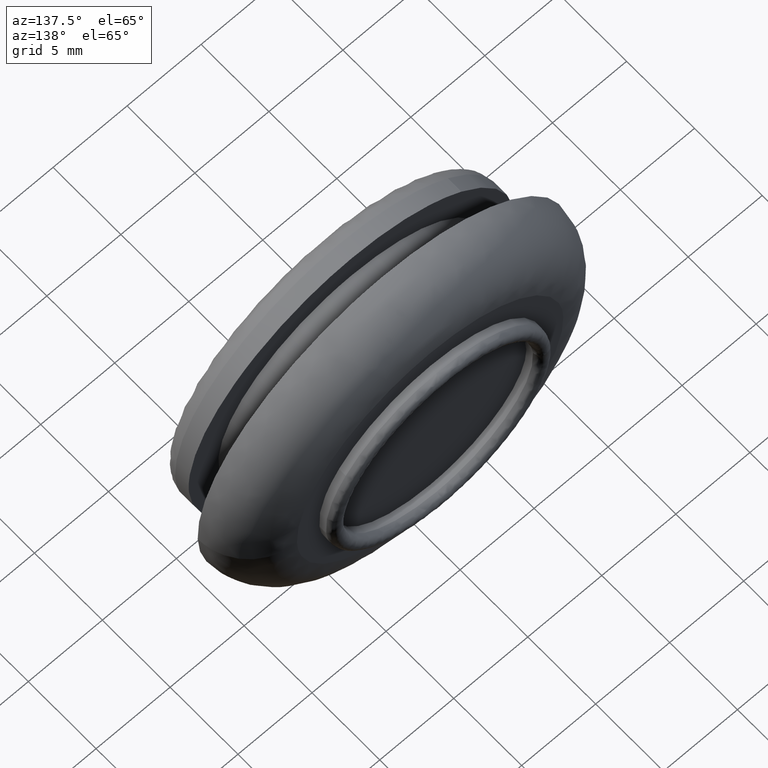
[diagram: clean part render]
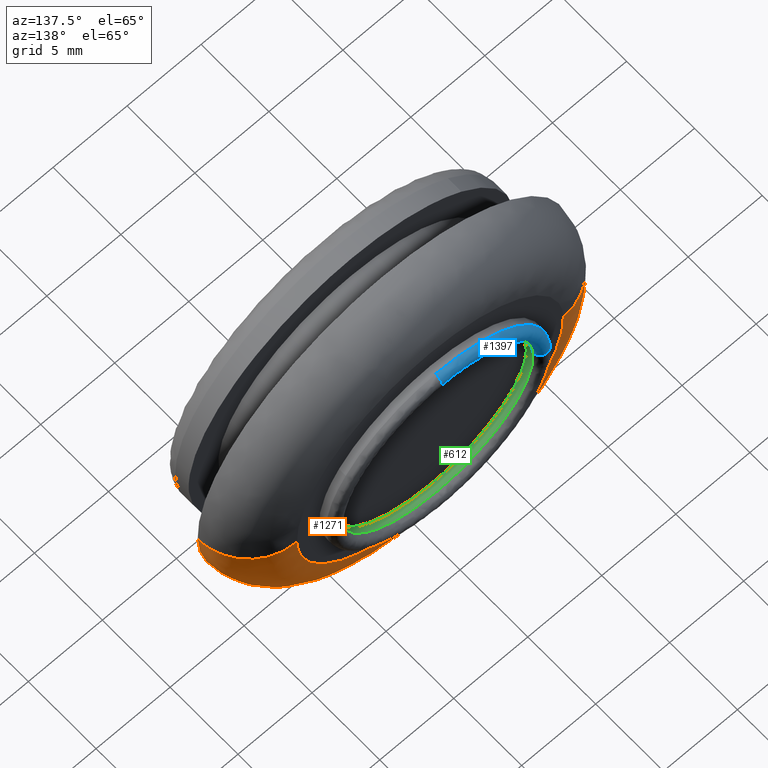
[diagram: same view with three faces highlighted in distinct colors, each labeled with its STEP entity id]
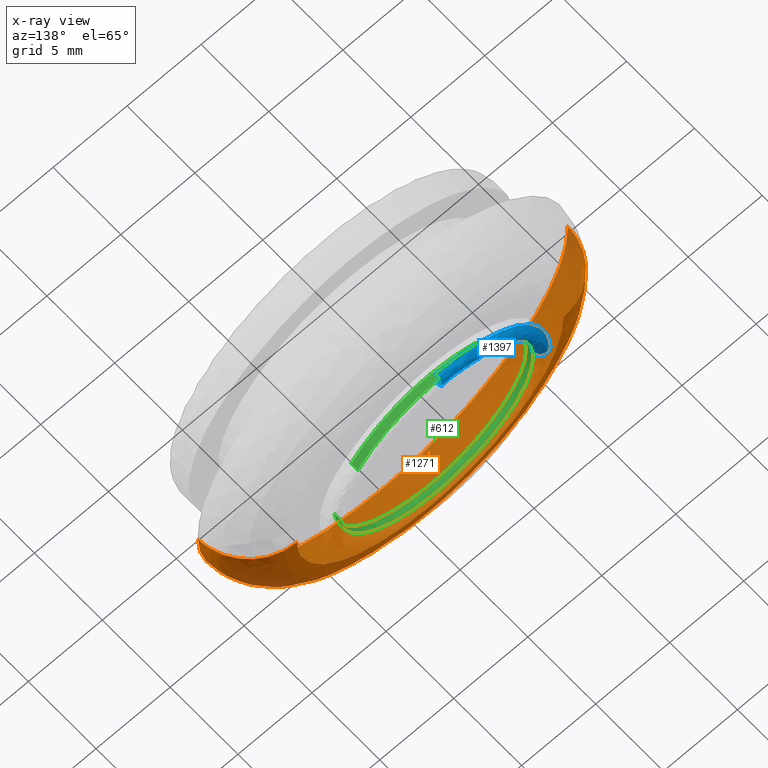
[diagram: x-ray of the same camera — body ghosted, the three highlighted faces saturated]
A machine part, auxiliary view with three faces highlighted in distinct colors.
The next image is the same camera in x-ray (body ghosted, the three faces saturated) — at least one of them is partly hidden behind the body in this view.
Their STEP definitions:

[orange] entity #1271 — the highlighted face is a freeform B-spline surface patch.
#1087=CARTESIAN_POINT('',(12.496050525280710,4.299995524025132,-0.314117832950500));
#1088=VERTEX_POINT('',#1087);
#1106=CARTESIAN_POINT('',(8.997155704191735,7.799999999999999,-0.226168808732028));
#1107=VERTEX_POINT('',#1106);
#1108=CARTESIAN_POINT('',(8.997155704191735,7.799999999999999,-0.226168808732028));
#1109=CARTESIAN_POINT('',(12.496054920537128,7.799999999979065,-0.314121100348626));
#1110=CARTESIAN_POINT('',(12.496050525280706,4.299995524025132,-0.314117832950500));
#1118=(BOUNDED_CURVE()B_SPLINE_CURVE(2,(#1108,#1109,#1110),.UNSPECIFIED.,.F.,.U.)B_SPLINE_CURVE_WITH_KNOTS((3,3),(-1.723441281978611,-0.263585555365044),.UNSPECIFIED.)CURVE()GEOMETRIC_REPRESENTATION_ITEM()RATIONAL_B_SPLINE_CURVE((0.883897567136494,0.626638493997421,0.888510883909800))REPRESENTATION_ITEM(''));
#1119=EDGE_CURVE('',#1107,#1088,#1118,.T.);
#1138=CARTESIAN_POINT('',(-8.997155704191737,7.799999999999999,0.226172808732031));
#1139=VERTEX_POINT('',#1138);
#1153=CARTESIAN_POINT('',(-12.496050525280710,4.299995524025133,0.314121832950505));
#1154=VERTEX_POINT('',#1153);
#1155=CARTESIAN_POINT('',(-8.997155704191737,7.799999999999999,0.226172808732031));
#1156=CARTESIAN_POINT('',(-12.496054920537130,7.799999999979062,0.314125100348629));
#1157=CARTESIAN_POINT('',(-12.496050525280706,4.299995524025133,0.314121832950505));
#1165=(BOUNDED_CURVE()B_SPLINE_CURVE(2,(#1155,#1156,#1157),.UNSPECIFIED.,.F.,.U.)B_SPLINE_CURVE_WITH_KNOTS((3,3),(-1.723441281978611,-0.263585555365044),.UNSPECIFIED.)CURVE()GEOMETRIC_REPRESENTATION_ITEM()RATIONAL_B_SPLINE_CURVE((0.883897567136494,0.626638493997421,0.888510883909800))REPRESENTATION_ITEM(''));
#1166=EDGE_CURVE('',#1139,#1154,#1165,.T.);
#1184=CARTESIAN_POINT('',(-8.753197906667907,7.791482061247154,0.220040189247239));
#1185=CARTESIAN_POINT('',(-8.973236095915143,7.791482061247154,-8.533157717420670));
#1186=CARTESIAN_POINT('',(-0.220038189247237,7.791482061247154,-8.753195906667905));
#1187=CARTESIAN_POINT('',(8.533159717420670,7.791482061247154,-8.973234095915142));
#1188=CARTESIAN_POINT('',(8.753197906667907,7.791482061247154,-0.220036189247235));
#1189=CARTESIAN_POINT('',(-12.766645136092702,8.072087961660770,0.320930363377683));
#1190=CARTESIAN_POINT('',(-13.087573499470386,8.072087961660774,-12.445714772715020));
#1191=CARTESIAN_POINT('',(-0.320928363377682,8.072087961660770,-12.766643136092700));
#1192=CARTESIAN_POINT('',(12.445716772715022,8.072087961660774,-13.087571499470384));
#1193=CARTESIAN_POINT('',(12.766645136092702,8.072087961660770,-0.320926363377680));
#1194=CARTESIAN_POINT('',(-12.487625934623955,4.057268382768482,0.313916369119696));
#1195=CARTESIAN_POINT('',(-12.801540303743652,4.057268382768482,-12.173709565504259));
#1196=CARTESIAN_POINT('',(-0.313914369119695,4.057268382768482,-12.487623934623958));
#1197=CARTESIAN_POINT('',(12.173711565504263,4.057268382768482,-12.801538303743650));
#1198=CARTESIAN_POINT('',(12.487625934623955,4.057268382768482,-0.313912369119693));
#1206=(BOUNDED_SURFACE()B_SPLINE_SURFACE(2,2,((#1184,#1189,#1194),(#1185,#1190,#1195),(#1186,#1191,#1196),(#1187,#1192,#1197),(#1188,#1193,#1198)),.UNSPECIFIED.,.F.,.F.,.U.)B_SPLINE_SURFACE_WITH_KNOTS((3,2,3),(3,3),(0.0,20.696712339410212,41.393424678820409),(0.0,6.378301979770220),.UNSPECIFIED.)GEOMETRIC_REPRESENTATION_ITEM()RATIONAL_B_SPLINE_SURFACE(((0.910892967376164,0.599412647750772,0.915967176520522),(0.644098594166822,0.423848747953554,0.647686601861957),(0.910892967376164,0.599412647750772,0.915967176520522),(0.644098594166822,0.423848747953554,0.647686601861957),(0.910892967376164,0.599412647750772,0.915967176520522)))REPRESENTATION_ITEM('')SURFACE());
#1207=CARTESIAN_POINT('',(0.0,4.300000000000000,-12.499995999999999));
#1208=VERTEX_POINT('',#1207);
#1209=CARTESIAN_POINT('',(0.0,4.300000000000000,-12.499995999999999));
#1210=CARTESIAN_POINT('',(12.189727658995960,4.299997762012565,-12.499995999999904));
#1211=CARTESIAN_POINT('',(12.496050525280708,4.299995524025132,-0.314117832950500));
#1219=(BOUNDED_CURVE()B_SPLINE_CURVE(2,(#1209,#1210,#1211),.UNSPECIFIED.,.F.,.U.)B_SPLINE_CURVE_WITH_KNOTS((3,3),(0.0,0.245579980124359),.UNSPECIFIED.)CURVE()GEOMETRIC_REPRESENTATION_ITEM()RATIONAL_B_SPLINE_CURVE((1.0,0.712285156580931,0.989826357388567))REPRESENTATION_ITEM(''));
#1220=EDGE_CURVE('',#1208,#1088,#1219,.T.);
#1221=ORIENTED_EDGE('',*,*,#1220,.F.);
#1222=CARTESIAN_POINT('',(-12.496050525280710,4.299995524025133,0.314121832950505));
#1223=CARTESIAN_POINT('',(-12.499997999992726,4.299995551451335,0.157086719997523));
#1224=CARTESIAN_POINT('',(-12.499997999992770,4.299995579575630,0.000001999999817));
#1225=CARTESIAN_POINT('',(-12.499997999996433,4.299997817563065,-12.499996000000088));
#1226=CARTESIAN_POINT('',(0.0,4.300000000000000,-12.499995999999999));
#1234=(BOUNDED_CURVE()B_SPLINE_CURVE(2,(#1222,#1223,#1224,#1225,#1226),.UNSPECIFIED.,.F.,.U.)B_SPLINE_CURVE_WITH_KNOTS((3,2,3),(0.745579980124359,0.750000000000000,1.0),.UNSPECIFIED.)CURVE()GEOMETRIC_REPRESENTATION_ITEM()RATIONAL_B_SPLINE_CURVE((0.989826357388567,0.994821624605617,1.0,0.707106781186548,1.0))REPRESENTATION_ITEM(''));
#1235=EDGE_CURVE('',#1154,#1208,#1234,.T.);
#1236=ORIENTED_EDGE('',*,*,#1235,.F.);
#1237=ORIENTED_EDGE('',*,*,#1166,.F.);
#1238=CARTESIAN_POINT('',(0.0,7.800000000000000,-8.999995999999998));
#1239=VERTEX_POINT('',#1238);
#1240=CARTESIAN_POINT('',(-8.997155704191737,7.799999999999999,0.226172808732031));
#1241=CARTESIAN_POINT('',(-8.999998000000002,7.800000000000001,0.113105263978272));
#1242=CARTESIAN_POINT('',(-8.999998000000000,7.800000000000000,0.000002000000002));
#1243=CARTESIAN_POINT('',(-8.999998000000000,7.800000000000001,-8.999995999999998));
#1244=CARTESIAN_POINT('',(0.0,7.800000000000000,-8.999995999999998));
#1252=(BOUNDED_CURVE()B_SPLINE_CURVE(2,(#1240,#1241,#1242,#1243,#1244),.UNSPECIFIED.,.F.,.U.)B_SPLINE_CURVE_WITH_KNOTS((3,2,3),(0.745579891769733,0.750000000000000,1.0),.UNSPECIFIED.)CURVE()GEOMETRIC_REPRESENTATION_ITEM()RATIONAL_B_SPLINE_CURVE((0.989826157681407,0.994821521091733,1.0,0.707106781186548,1.0))REPRESENTATION_ITEM(''));
#1253=EDGE_CURVE('',#1139,#1239,#1252,.T.);
#1254=ORIENTED_EDGE('',*,*,#1253,.T.);
#1255=CARTESIAN_POINT('',(0.0,7.800000000000000,-8.999995999999998));
#1256=CARTESIAN_POINT('',(8.776598935266343,7.799999999999999,-8.999995999999999));
#1257=CARTESIAN_POINT('',(8.997155704191735,7.799999999999999,-0.226168808732028));
#1265=(BOUNDED_CURVE()B_SPLINE_CURVE(2,(#1255,#1256,#1257),.UNSPECIFIED.,.F.,.U.)B_SPLINE_CURVE_WITH_KNOTS((3,3),(0.0,0.245579891769733),.UNSPECIFIED.)CURVE()GEOMETRIC_REPRESENTATION_ITEM()RATIONAL_B_SPLINE_CURVE((1.0,0.712285260094815,0.989826157681407))REPRESENTATION_ITEM(''));
#1266=EDGE_CURVE('',#1239,#1107,#1265,.T.);
#1267=ORIENTED_EDGE('',*,*,#1266,.T.);
#1268=ORIENTED_EDGE('',*,*,#1119,.T.);
#1269=EDGE_LOOP('',(#1221,#1236,#1237,#1254,#1267,#1268));
#1270=FACE_OUTER_BOUND('',#1269,.T.);
#1271=ADVANCED_FACE('',(#1270),#1206,.T.);

[blue] entity #1397 — the highlighted face is a freeform B-spline surface patch.
#258=CARTESIAN_POINT('',(0.094245273996667,8.300000000076508,7.499407831686487));
#259=VERTEX_POINT('',#258);
#273=CARTESIAN_POINT('',(0.0,8.300000000000001,7.500000000000002));
#274=VERTEX_POINT('',#273);
#275=CARTESIAN_POINT('',(0.094245273996667,8.300000000076508,7.499407831686487));
#276=CARTESIAN_POINT('',(0.047124497376239,8.300000000000001,7.500000000000001));
#277=CARTESIAN_POINT('',(0.0,8.300000000000001,7.500000000000002));
#285=(BOUNDED_CURVE()B_SPLINE_CURVE(2,(#275,#276,#277),.UNSPECIFIED.,.F.,.U.)B_SPLINE_CURVE_WITH_KNOTS((3,3),(0.497784295921559,0.500000000000000),.UNSPECIFIED.)CURVE()GEOMETRIC_REPRESENTATION_ITEM()RATIONAL_B_SPLINE_CURVE((0.994854295643623,0.997404141202110,1.0))REPRESENTATION_ITEM(''));
#286=EDGE_CURVE('',#259,#274,#285,.T.);
#288=CARTESIAN_POINT('',(-7.481740558671582,8.300000000077104,0.523001247353787));
#289=VERTEX_POINT('',#288);
#290=CARTESIAN_POINT('',(0.0,8.300000000000001,7.500000000000002));
#291=CARTESIAN_POINT('',(-6.994024489417595,8.299999999999999,7.500000000000001));
#292=CARTESIAN_POINT('',(-7.481740558671582,8.300000000077104,0.523001247353787));
#300=(BOUNDED_CURVE()B_SPLINE_CURVE(2,(#290,#291,#292),.UNSPECIFIED.,.F.,.U.)B_SPLINE_CURVE_WITH_KNOTS((3,3),(0.500000000000000,0.737833686534930),.UNSPECIFIED.)CURVE()GEOMETRIC_REPRESENTATION_ITEM()RATIONAL_B_SPLINE_CURVE((1.0,0.721360504034059,0.972879876386633))REPRESENTATION_ITEM(''));
#301=EDGE_CURVE('',#274,#289,#300,.T.);
#474=CARTESIAN_POINT('',(0.081679234118887,8.300000000019672,6.499486787482601));
#475=VERTEX_POINT('',#474);
#565=CARTESIAN_POINT('',(-6.484174884830624,8.300000000018855,0.453267995785873));
#566=VERTEX_POINT('',#565);
#582=CARTESIAN_POINT('',(0.0,8.300000000000001,6.500000000000002));
#583=VERTEX_POINT('',#582);
#584=CARTESIAN_POINT('',(0.0,8.300000000000001,6.500000000000002));
#585=CARTESIAN_POINT('',(-6.061487642136870,8.300000000000001,6.500000000000004));
#586=CARTESIAN_POINT('',(-6.484174884830624,8.300000000018855,0.453267995785873));
#594=(BOUNDED_CURVE()B_SPLINE_CURVE(2,(#584,#585,#586),.UNSPECIFIED.,.F.,.U.)B_SPLINE_CURVE_WITH_KNOTS((3,3),(0.500000000000000,0.737833686534499),.UNSPECIFIED.)CURVE()GEOMETRIC_REPRESENTATION_ITEM()RATIONAL_B_SPLINE_CURVE((1.0,0.721360504034564,0.972879876385722))REPRESENTATION_ITEM(''));
#595=EDGE_CURVE('',#583,#566,#594,.T.);
#597=CARTESIAN_POINT('',(0.081679234118887,8.300000000019672,6.499486787482601));
#598=CARTESIAN_POINT('',(0.040841229389923,8.300000000000001,6.500000000000002));
#599=CARTESIAN_POINT('',(0.0,8.300000000000001,6.500000000000002));
#607=(BOUNDED_CURVE()B_SPLINE_CURVE(2,(#597,#598,#599),.UNSPECIFIED.,.F.,.U.)B_SPLINE_CURVE_WITH_KNOTS((3,3),(0.497784295921232,0.500000000000000),.UNSPECIFIED.)CURVE()GEOMETRIC_REPRESENTATION_ITEM()RATIONAL_B_SPLINE_CURVE((0.994854295642870,0.997404141201726,1.0))REPRESENTATION_ITEM(''));
#608=EDGE_CURVE('',#475,#583,#607,.T.);
#1326=CARTESIAN_POINT('',(-6.484174884830624,8.300000000018855,0.453267995785873));
#1327=CARTESIAN_POINT('',(-6.484174884869079,8.800000000000001,0.453267995776503));
#1328=CARTESIAN_POINT('',(-6.982957721751678,8.800000000000001,0.488134621561594));
#1329=CARTESIAN_POINT('',(-7.481740558518061,8.800000000000001,0.523001247338561));
#1330=CARTESIAN_POINT('',(-7.481740558671582,8.300000000077104,0.523001247353787));
#1338=(BOUNDED_CURVE()B_SPLINE_CURVE(2,(#1326,#1327,#1328,#1329,#1330),.UNSPECIFIED.,.F.,.U.)B_SPLINE_CURVE_WITH_KNOTS((3,2,3),(-3.781082537316214,-2.0,-0.218917462966828),.UNSPECIFIED.)CURVE()GEOMETRIC_REPRESENTATION_ITEM()RATIONAL_B_SPLINE_CURVE((0.909467617922561,0.666712033872824,0.977505800795127,0.666712033922214,0.909467617845405))REPRESENTATION_ITEM(''));
#1339=EDGE_CURVE('',#566,#289,#1338,.T.);
#1345=CARTESIAN_POINT('',(0.081679234118887,8.300000000019672,6.499486787482601));
#1346=CARTESIAN_POINT('',(0.081679234110207,8.800000000000001,6.499486787522057));
#1347=CARTESIAN_POINT('',(0.087962254051389,8.800000000000001,6.999447309584624));
#1348=CARTESIAN_POINT('',(0.094245273991143,8.800000000000003,7.499407831533529));
#1349=CARTESIAN_POINT('',(0.094245273996667,8.300000000076508,7.499407831686487));
#1357=(BOUNDED_CURVE()B_SPLINE_CURVE(2,(#1345,#1346,#1347,#1348,#1349),.UNSPECIFIED.,.F.,.U.)B_SPLINE_CURVE_WITH_KNOTS((3,2,3),(-3.781082537312238,-2.0,-0.218917462963931),.UNSPECIFIED.)CURVE()GEOMETRIC_REPRESENTATION_ITEM()RATIONAL_B_SPLINE_CURVE((0.930396133896795,0.682054299147073,1.0,0.682054299196372,0.930396133819781))REPRESENTATION_ITEM(''));
#1358=EDGE_CURVE('',#475,#259,#1357,.T.);
#1366=CARTESIAN_POINT('',(0.081742850269833,8.229028759095721,6.504548934176996));
#1367=CARTESIAN_POINT('',(-6.060848422016264,8.229028759095726,6.581743076016607));
#1368=CARTESIAN_POINT('',(-6.489225107353961,8.229028759095725,0.453621023596410));
#1369=CARTESIAN_POINT('',(0.080714017599053,8.800000000000001,6.422681341202061));
#1370=CARTESIAN_POINT('',(-5.984565311644764,8.799999999999999,6.498903901369938));
#1371=CARTESIAN_POINT('',(-6.407550358107370,8.800000000000003,0.447911679353792));
#1372=CARTESIAN_POINT('',(0.087962254051389,8.800000000000001,6.999447309584624));
#1373=CARTESIAN_POINT('',(-6.521988001452202,8.800000000000001,7.082514766779479));
#1374=CARTESIAN_POINT('',(-6.982957721751680,8.800000000000003,0.488134621561594));
#1375=CARTESIAN_POINT('',(0.095210490079812,8.800000000000001,7.576213244235002));
#1376=CARTESIAN_POINT('',(-7.059410659828452,8.799999999999999,7.666125598056511));
#1377=CARTESIAN_POINT('',(-7.558365051743259,8.799999999999999,0.528357561416955));
#1378=CARTESIAN_POINT('',(0.094181657884576,8.229028787749078,7.494345689100656));
#1379=CARTESIAN_POINT('',(-6.983127584716300,8.229028787749076,7.583286461699513));
#1380=CARTESIAN_POINT('',(-7.476690340248122,8.229028787749078,0.522648219813293));
#1388=(BOUNDED_SURFACE()B_SPLINE_SURFACE(2,2,((#1366,#1369,#1372,#1375,#1378),(#1367,#1370,#1373,#1376,#1379),(#1368,#1371,#1374,#1377,#1380)),.UNSPECIFIED.,.F.,.F.,.U.)B_SPLINE_SURFACE_WITH_KNOTS((3,3),(3,2,3),(0.0,11.918023340995109),(0.0,0.913127714524047,1.826255394319717),.UNSPECIFIED.)GEOMETRIC_REPRESENTATION_ITEM()RATIONAL_B_SPLINE_SURFACE(((0.985666241863703,0.650291599691500,1.0,0.650291612991726,0.985666216353544),(0.708519081938693,0.467444239882547,0.718822509939086,0.467444249443049,0.708519063601417),(0.963494469069702,0.635663810906783,0.977505800795127,0.635663823907832,0.963494444133374)))REPRESENTATION_ITEM('')SURFACE());
#1389=ORIENTED_EDGE('',*,*,#301,.F.);
#1390=ORIENTED_EDGE('',*,*,#286,.F.);
#1391=ORIENTED_EDGE('',*,*,#1358,.F.);
#1392=ORIENTED_EDGE('',*,*,#608,.T.);
#1393=ORIENTED_EDGE('',*,*,#595,.T.);
#1394=ORIENTED_EDGE('',*,*,#1339,.T.);
#1395=EDGE_LOOP('',(#1389,#1390,#1391,#1392,#1393,#1394));
#1396=FACE_OUTER_BOUND('',#1395,.T.);
#1397=ADVANCED_FACE('',(#1396),#1388,.T.);

[green] entity #612 — the highlighted face is a freeform B-spline surface patch.
#446=CARTESIAN_POINT('',(5.336895899896083,8.312500000020163,3.710462369506240));
#447=CARTESIAN_POINT('',(3.579356602806238,8.312500000020163,6.238397809979152));
#448=CARTESIAN_POINT('',(0.509983965312796,8.312500000020163,6.479962675430665));
#449=CARTESIAN_POINT('',(-5.969976710117866,8.312500000020163,6.989946640743461));
#450=CARTESIAN_POINT('',(-6.479960675430663,8.312500000020163,0.509985965312798));
#451=CARTESIAN_POINT('',(-6.989944640743461,8.312500000020163,-5.969974710117865));
#452=CARTESIAN_POINT('',(-0.509983965312796,8.312500000020163,-6.479958675430661));
#453=CARTESIAN_POINT('',(5.969976710117866,8.312500000020163,-6.989942640743458));
#454=CARTESIAN_POINT('',(6.479960675430663,8.312500000020163,-0.509981965312795));
#455=CARTESIAN_POINT('',(5.336895899896083,7.787187499999494,3.710462369506240));
#456=CARTESIAN_POINT('',(3.579356602806238,7.787187499999494,6.238397809979152));
#457=CARTESIAN_POINT('',(0.509983965312796,7.787187499999495,6.479962675430665));
#458=CARTESIAN_POINT('',(-5.969976710117866,7.787187499999495,6.989946640743461));
#459=CARTESIAN_POINT('',(-6.479960675430663,7.787187499999495,0.509985965312798));
#460=CARTESIAN_POINT('',(-6.989944640743461,7.787187499999495,-5.969974710117865));
#461=CARTESIAN_POINT('',(-0.509983965312796,7.787187499999495,-6.479958675430661));
#462=CARTESIAN_POINT('',(5.969976710117866,7.787187499999495,-6.989942640743458));
#463=CARTESIAN_POINT('',(6.479960675430663,7.787187499999495,-0.509981965312795));
#471=(BOUNDED_SURFACE()B_SPLINE_SURFACE(2,1,((#446,#455),(#447,#456),(#448,#457),(#449,#458),(#450,#459),(#451,#460),(#452,#461),(#453,#462),(#454,#463)),.UNSPECIFIED.,.F.,.F.,.U.)B_SPLINE_SURFACE_WITH_KNOTS((3,2,2,2,3),(2,2),(0.0,6.030947612475503,16.800496920467470,27.570046228459439,38.339595536451412),(0.0,1.0),.UNSPECIFIED.)GEOMETRIC_REPRESENTATION_ITEM()RATIONAL_B_SPLINE_SURFACE(((0.855662221768731,0.855662221768731),(0.835979797464467,0.835979797464467),(1.0,1.0),(0.707106781186548,0.707106781186548),(1.0,1.0),(0.707106781186548,0.707106781186548),(1.0,1.0),(0.707106781186548,0.707106781186548),(1.0,1.0)))REPRESENTATION_ITEM('')SURFACE());
#472=CARTESIAN_POINT('',(5.336896269585260,8.300000000003536,3.710461837766975));
#473=VERTEX_POINT('',#472);
#474=CARTESIAN_POINT('',(0.081679234118887,8.300000000019672,6.499486787482601));
#475=VERTEX_POINT('',#474);
#476=CARTESIAN_POINT('',(5.336896269585260,8.300000000003536,3.710461837766975));
#477=CARTESIAN_POINT('',(3.427065385785737,8.300000000009417,6.457445212240052));
#478=CARTESIAN_POINT('',(0.081679234118887,8.300000000019672,6.499486787482601));
#486=(BOUNDED_CURVE()B_SPLINE_CURVE(2,(#476,#477,#478),.UNSPECIFIED.,.F.,.U.)B_SPLINE_CURVE_WITH_KNOTS((3,3),(0.348090578632268,0.497784295921232),.UNSPECIFIED.)CURVE()GEOMETRIC_REPRESENTATION_ITEM()RATIONAL_B_SPLINE_CURVE((0.860340236888551,0.822585866895775,0.994854295642870))REPRESENTATION_ITEM(''));
#487=EDGE_CURVE('',#473,#475,#486,.T.);
#488=ORIENTED_EDGE('',*,*,#487,.F.);
#489=CARTESIAN_POINT('',(5.336896199254175,7.799999999999999,3.710461938928065));
#490=VERTEX_POINT('',#489);
#491=CARTESIAN_POINT('',(5.336896269585260,8.300000000003536,3.710461837766975));
#492=CARTESIAN_POINT('',(5.336896199254175,7.799999999999999,3.710461938928065));
#493=QUASI_UNIFORM_CURVE('',1,(#491,#492),.UNSPECIFIED.,.F.,.U.);
#494=EDGE_CURVE('',#473,#490,#493,.T.);
#495=ORIENTED_EDGE('',*,*,#494,.T.);
#496=CARTESIAN_POINT('',(0.0,7.800000000000000,6.500000000000002));
#497=VERTEX_POINT('',#496);
#498=CARTESIAN_POINT('',(5.336896199254175,7.799999999999999,3.710461938928065));
#499=CARTESIAN_POINT('',(3.397479156915169,7.799999999999999,6.500000000000002));
#500=CARTESIAN_POINT('',(0.0,7.800000000000000,6.500000000000002));
#508=(BOUNDED_CURVE()B_SPLINE_CURVE(2,(#498,#499,#500),.UNSPECIFIED.,.F.,.U.)B_SPLINE_CURVE_WITH_KNOTS((3,3),(0.348090584397941,0.500000000000000),.UNSPECIFIED.)CURVE()GEOMETRIC_REPRESENTATION_ITEM()RATIONAL_B_SPLINE_CURVE((0.860340233980222,0.822027049184970,1.0))REPRESENTATION_ITEM(''));
#509=EDGE_CURVE('',#490,#497,#508,.T.);
#510=ORIENTED_EDGE('',*,*,#509,.T.);
#511=CARTESIAN_POINT('',(0.0,7.800000000000000,-6.499995999999999));
#512=VERTEX_POINT('',#511);
#513=CARTESIAN_POINT('',(0.0,7.800000000000000,6.500000000000002));
#514=CARTESIAN_POINT('',(-6.499998000000001,7.800000000000001,6.500000000000003));
#515=CARTESIAN_POINT('',(-6.499998000000000,7.800000000000000,0.000002000000002));
#516=CARTESIAN_POINT('',(-6.499998000000001,7.800000000000001,-6.499995999999997));
#517=CARTESIAN_POINT('',(0.0,7.800000000000000,-6.499995999999999));
#525=(BOUNDED_CURVE()B_SPLINE_CURVE(2,(#513,#514,#515,#516,#517),.UNSPECIFIED.,.F.,.U.)B_SPLINE_CURVE_WITH_KNOTS((3,2,3),(0.500000000000000,0.750000000000000,1.0),.UNSPECIFIED.)CURVE()GEOMETRIC_REPRESENTATION_ITEM()RATIONAL_B_SPLINE_CURVE((1.0,0.707106781186548,1.0,0.707106781186548,1.0))REPRESENTATION_ITEM(''));
#526=EDGE_CURVE('',#497,#512,#525,.T.);
#527=ORIENTED_EDGE('',*,*,#526,.T.);
#528=CARTESIAN_POINT('',(6.479961087293131,7.800000000000000,-0.509976732049925));
#529=VERTEX_POINT('',#528);
#530=CARTESIAN_POINT('',(0.0,7.800000000000000,-6.499995999999999));
#531=CARTESIAN_POINT('',(6.008541214541071,7.799999999999999,-6.499995999999998));
#532=CARTESIAN_POINT('',(6.479961087293131,7.800000000000001,-0.509976732049925));
#540=(BOUNDED_CURVE()B_SPLINE_CURVE(2,(#530,#531,#532),.UNSPECIFIED.,.F.,.U.)B_SPLINE_CURVE_WITH_KNOTS((3,3),(0.0,0.236331439076431),.UNSPECIFIED.)CURVE()GEOMETRIC_REPRESENTATION_ITEM()RATIONAL_B_SPLINE_CURVE((1.0,0.723120496408356,0.969723645093360))REPRESENTATION_ITEM(''));
#541=EDGE_CURVE('',#512,#529,#540,.T.);
#542=ORIENTED_EDGE('',*,*,#541,.T.);
#543=CARTESIAN_POINT('',(6.479961092311037,8.299999999999624,-0.509976668290068));
#544=VERTEX_POINT('',#543);
#545=CARTESIAN_POINT('',(6.479961092311037,8.299999999999624,-0.509976668290068));
#546=CARTESIAN_POINT('',(6.479961087293131,7.800000000000000,-0.509976732049925));
#547=QUASI_UNIFORM_CURVE('',1,(#545,#546),.UNSPECIFIED.,.F.,.U.);
#548=EDGE_CURVE('',#544,#529,#547,.T.);
#549=ORIENTED_EDGE('',*,*,#548,.F.);
#550=CARTESIAN_POINT('',(0.0,8.300000000000001,-6.499995999999999));
#551=VERTEX_POINT('',#550);
#552=CARTESIAN_POINT('',(0.0,8.300000000000001,-6.499995999999999));
#553=CARTESIAN_POINT('',(6.008541273845179,8.300000000000001,-6.499995999999997));
#554=CARTESIAN_POINT('',(6.479961092311037,8.299999999999624,-0.509976668290068));
#562=(BOUNDED_CURVE()B_SPLINE_CURVE(2,(#552,#553,#554),.UNSPECIFIED.,.F.,.U.)B_SPLINE_CURVE_WITH_KNOTS((3,3),(0.0,0.236331440763170),.UNSPECIFIED.)CURVE()GEOMETRIC_REPRESENTATION_ITEM()RATIONAL_B_SPLINE_CURVE((1.0,0.723120494432218,0.969723648613460))REPRESENTATION_ITEM(''));
#563=EDGE_CURVE('',#551,#544,#562,.T.);
#564=ORIENTED_EDGE('',*,*,#563,.F.);
#565=CARTESIAN_POINT('',(-6.484174884830624,8.300000000018855,0.453267995785873));
#566=VERTEX_POINT('',#565);
#567=CARTESIAN_POINT('',(-6.484174884830624,8.300000000018855,0.453267995785873));
#568=CARTESIAN_POINT('',(-6.499998000000000,8.299999999999999,0.226911183379440));
#569=CARTESIAN_POINT('',(-6.499998000000000,8.300000000000001,0.000002000000002));
#570=CARTESIAN_POINT('',(-6.499998000000001,8.300000000000001,-6.499995999999997));
#571=CARTESIAN_POINT('',(0.0,8.300000000000001,-6.499995999999999));
#579=(BOUNDED_CURVE()B_SPLINE_CURVE(2,(#567,#568,#569,#570,#571),.UNSPECIFIED.,.F.,.U.)B_SPLINE_CURVE_WITH_KNOTS((3,2,3),(0.737833686534498,0.750000000000000,1.0),.UNSPECIFIED.)CURVE()GEOMETRIC_REPRESENTATION_ITEM()RATIONAL_B_SPLINE_CURVE((0.972879876385720,0.985746277151983,1.0,0.707106781186548,1.0))REPRESENTATION_ITEM(''));
#580=EDGE_CURVE('',#566,#551,#579,.T.);
#581=ORIENTED_EDGE('',*,*,#580,.F.);
#582=CARTESIAN_POINT('',(0.0,8.300000000000001,6.500000000000002));
#583=VERTEX_POINT('',#582);
#584=CARTESIAN_POINT('',(0.0,8.300000000000001,6.500000000000002));
#585=CARTESIAN_POINT('',(-6.061487642136870,8.300000000000001,6.500000000000004));
#586=CARTESIAN_POINT('',(-6.484174884830624,8.300000000018855,0.453267995785873));
#594=(BOUNDED_CURVE()B_SPLINE_CURVE(2,(#584,#585,#586),.UNSPECIFIED.,.F.,.U.)B_SPLINE_CURVE_WITH_KNOTS((3,3),(0.500000000000000,0.737833686534499),.UNSPECIFIED.)CURVE()GEOMETRIC_REPRESENTATION_ITEM()RATIONAL_B_SPLINE_CURVE((1.0,0.721360504034564,0.972879876385722))REPRESENTATION_ITEM(''));
#595=EDGE_CURVE('',#583,#566,#594,.T.);
#596=ORIENTED_EDGE('',*,*,#595,.F.);
#597=CARTESIAN_POINT('',(0.081679234118887,8.300000000019672,6.499486787482601));
#598=CARTESIAN_POINT('',(0.040841229389923,8.300000000000001,6.500000000000002));
#599=CARTESIAN_POINT('',(0.0,8.300000000000001,6.500000000000002));
#607=(BOUNDED_CURVE()B_SPLINE_CURVE(2,(#597,#598,#599),.UNSPECIFIED.,.F.,.U.)B_SPLINE_CURVE_WITH_KNOTS((3,3),(0.497784295921232,0.500000000000000),.UNSPECIFIED.)CURVE()GEOMETRIC_REPRESENTATION_ITEM()RATIONAL_B_SPLINE_CURVE((0.994854295642870,0.997404141201726,1.0))REPRESENTATION_ITEM(''));
#608=EDGE_CURVE('',#475,#583,#607,.T.);
#609=ORIENTED_EDGE('',*,*,#608,.F.);
#610=EDGE_LOOP('',(#488,#495,#510,#527,#542,#549,#564,#581,#596,#609));
#611=FACE_OUTER_BOUND('',#610,.T.);
#612=ADVANCED_FACE('',(#611),#471,.F.);